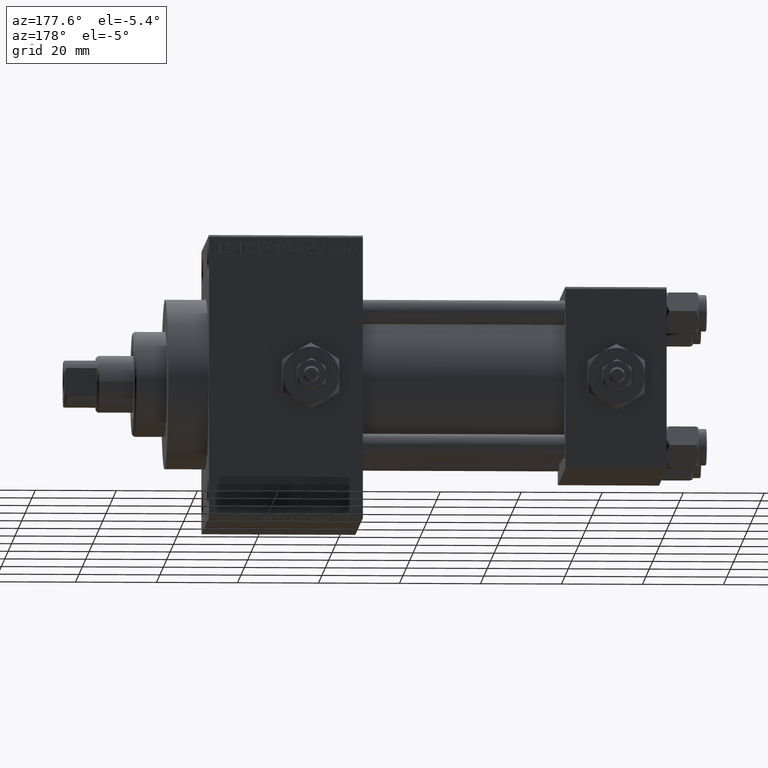
[diagram: clean part render]
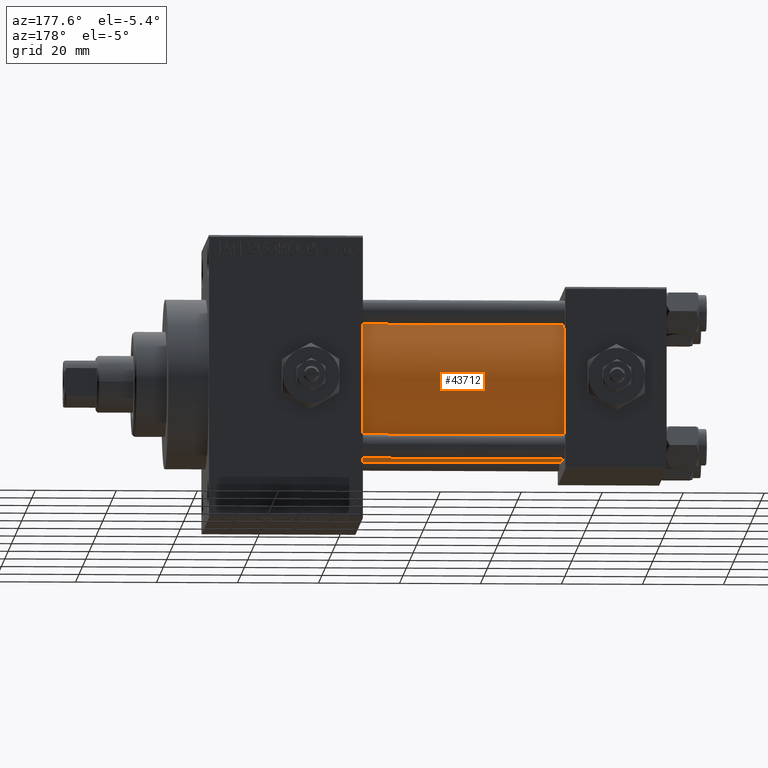
[diagram: same view with one face highlighted and labeled with its STEP entity id]
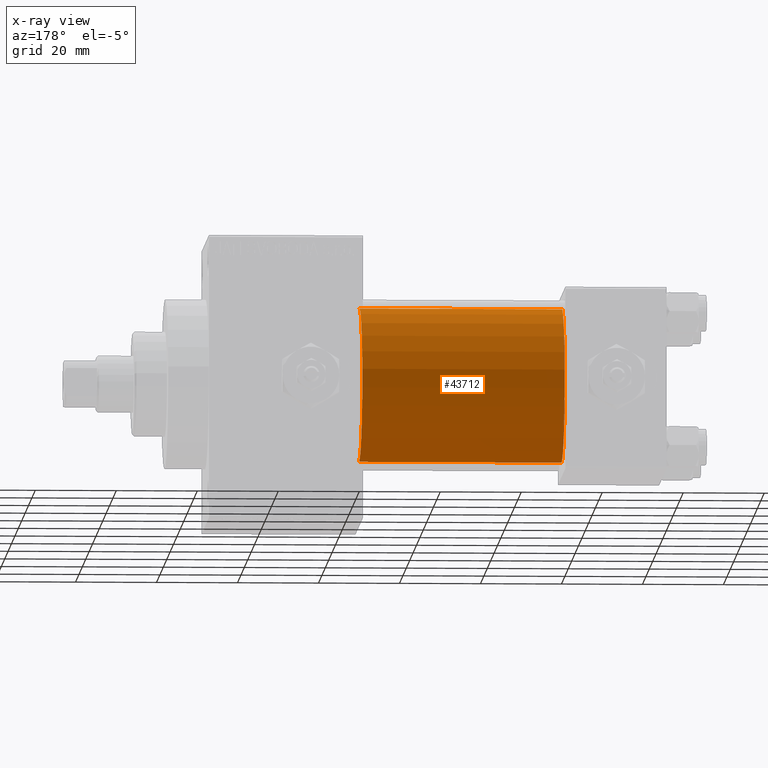
[diagram: x-ray of the same camera — body ghosted, the highlighted face saturated]
A machine part, auxiliary view. The second image highlights one B-rep face of the part: STEP entity #43712.
The next image is the same camera in x-ray: the body ghosted, the highlighted face saturated — about 0% of this face is hidden behind the body in this view.
In plain terms, the highlighted cylindrical surface (partial cylindrical patch) has radius 19 mm, axis along (-1, -0, -0).
Its self-contained STEP definition (entity closure, byte-faithful):
#2353 = VECTOR ( 'NONE', #42097, 1000.000000000000000 ) ;
#2789 = ORIENTED_EDGE ( 'NONE', *, *, #47599, .F. ) ;
#4096 = CARTESIAN_POINT ( 'NONE',  ( 75.00000000000001421, -2.602085213965210642E-15, 19.00000000000000000 ) ) ;
#8026 = FACE_OUTER_BOUND ( 'NONE', #36232, .T. ) ;
#8101 = CARTESIAN_POINT ( 'NONE',  ( 25.00000000000000000, -2.752562955852396712E-16, -19.00000000000000000 ) ) ;
#9513 = CARTESIAN_POINT ( 'NONE',  ( 75.00000000000001421, -2.752562955852396712E-16, -19.00000000000000000 ) ) ;
#12429 = DIRECTION ( 'NONE',  ( 1.000000000000000000, -0.000000000000000000, 0.000000000000000000 ) ) ;
#12486 = CIRCLE ( 'NONE', #46606, 19.00000000000000000 ) ;
#13941 = CARTESIAN_POINT ( 'NONE',  ( 25.00000000000000000, -2.602085213965210642E-15, 19.00000000000000000 ) ) ;
#14415 = VERTEX_POINT ( 'NONE', #4096 ) ;
#16132 = VERTEX_POINT ( 'NONE', #9513 ) ;
#16656 = CARTESIAN_POINT ( 'NONE',  ( 75.00000000000001421, -2.602085213965210642E-15, 0.000000000000000000 ) ) ;
#17940 = VERTEX_POINT ( 'NONE', #13941 ) ;
#18198 = ORIENTED_EDGE ( 'NONE', *, *, #37106, .F. ) ;
#19445 = CARTESIAN_POINT ( 'NONE',  ( 75.00000000000001421, -2.602085213965210642E-15, 0.000000000000000000 ) ) ;
#19485 = CARTESIAN_POINT ( 'NONE',  ( 75.00000000000001421, -2.602085213965210642E-15, 19.00000000000000000 ) ) ;
#19936 = DIRECTION ( 'NONE',  ( -1.000000000000000000, -0.000000000000000000, -0.000000000000000000 ) ) ;
#20871 = DIRECTION ( 'NONE',  ( 0.000000000000000000, 0.000000000000000000, -1.000000000000000000 ) ) ;
#23291 = EDGE_CURVE ( 'NONE', #16132, #32860, #38333, .T. ) ;
#26640 = DIRECTION ( 'NONE',  ( -1.000000000000000000, -0.000000000000000000, -0.000000000000000000 ) ) ;
#26879 = CARTESIAN_POINT ( 'NONE',  ( 75.00000000000001421, -2.752562955852396712E-16, -19.00000000000000000 ) ) ;
#26881 = CYLINDRICAL_SURFACE ( 'NONE', #45254, 19.00000000000000000 ) ;
#27813 = DIRECTION ( 'NONE',  ( 1.000000000000000000, 0.000000000000000000, 0.000000000000000000 ) ) ;
#32566 = EDGE_CURVE ( 'NONE', #32860, #17940, #12486, .T. ) ;
#32860 = VERTEX_POINT ( 'NONE', #8101 ) ;
#34607 = DIRECTION ( 'NONE',  ( 0.000000000000000000, 0.000000000000000000, 1.000000000000000000 ) ) ;
#35870 = CIRCLE ( 'NONE', #46950, 19.00000000000000000 ) ;
#36125 = ORIENTED_EDGE ( 'NONE', *, *, #32566, .T. ) ;
#36232 = EDGE_LOOP ( 'NONE', ( #2789, #46762, #36125, #18198 ) ) ;
#37106 = EDGE_CURVE ( 'NONE', #14415, #17940, #44107, .T. ) ;
#38333 = LINE ( 'NONE', #26879, #44836 ) ;
#41772 = DIRECTION ( 'NONE',  ( 0.000000000000000000, 0.000000000000000000, 1.000000000000000000 ) ) ;
#42097 = DIRECTION ( 'NONE',  ( -1.000000000000000000, -0.000000000000000000, -0.000000000000000000 ) ) ;
#43712 = ADVANCED_FACE ( 'NONE', ( #8026 ), #26881, .T. ) ;
#44107 = LINE ( 'NONE', #19485, #2353 ) ;
#44836 = VECTOR ( 'NONE', #26640, 1000.000000000000000 ) ;
#45254 = AXIS2_PLACEMENT_3D ( 'NONE', #19445, #19936, #34607 ) ;
#46463 = CARTESIAN_POINT ( 'NONE',  ( 25.00000000000000000, -2.602085213965210642E-15, 0.000000000000000000 ) ) ;
#46606 = AXIS2_PLACEMENT_3D ( 'NONE', #46463, #12429, #41772 ) ;
#46762 = ORIENTED_EDGE ( 'NONE', *, *, #23291, .T. ) ;
#46950 = AXIS2_PLACEMENT_3D ( 'NONE', #16656, #27813, #20871 ) ;
#47599 = EDGE_CURVE ( 'NONE', #16132, #14415, #35870, .T. ) ;